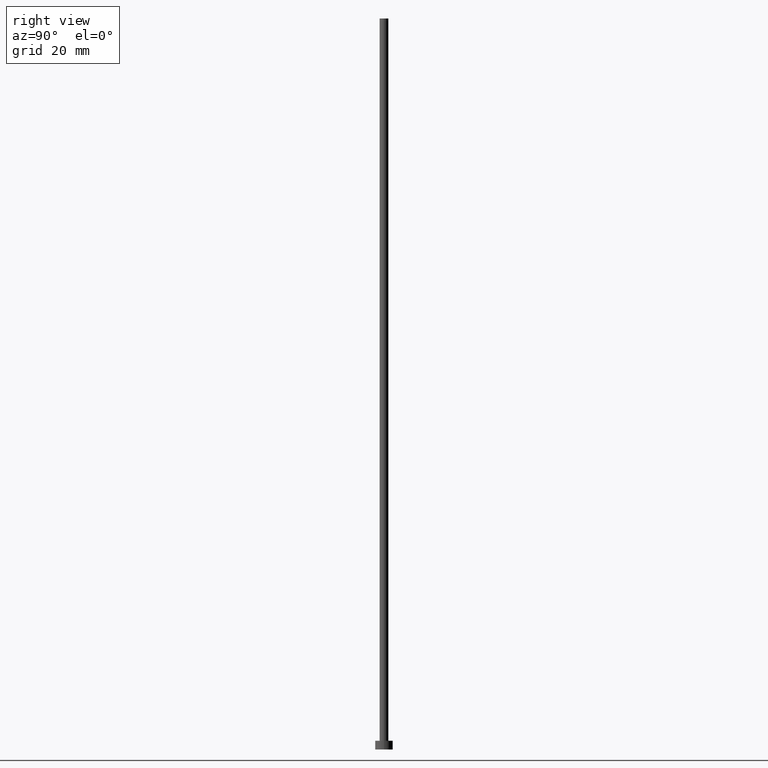
[diagram: clean part render]
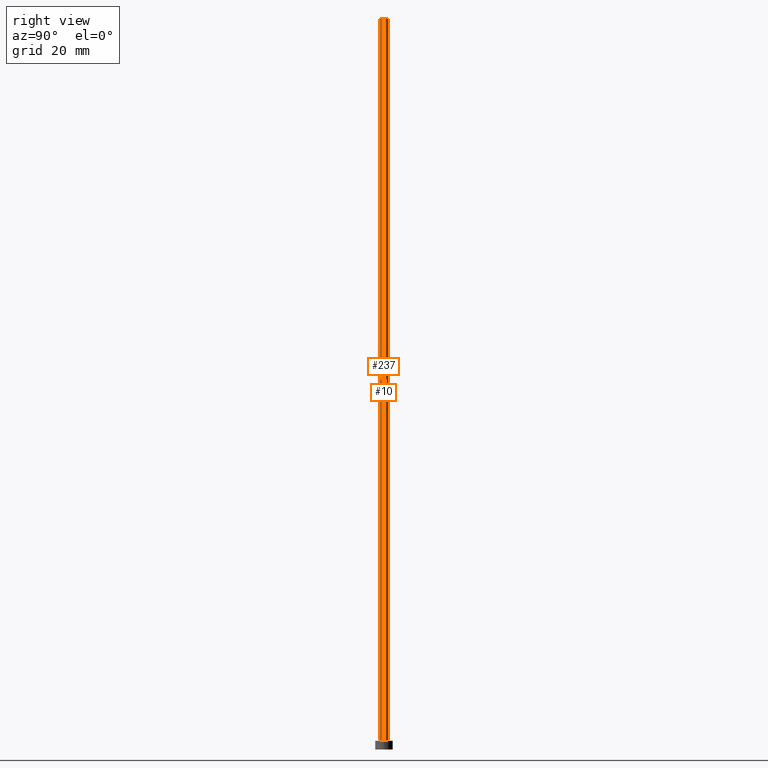
[diagram: same view with one multi-face feature highlighted, each face labeled with its STEP entity id]
A machine part, right view. The highlighted faces form ONE feature: a constant-radius fillet chain: 2 tangent blend faces with common blend radius 1.5 mm. The faces share edges in the B-rep.
Their STEP definitions:
[1] entity #237 (Cylinder):
#3 = CIRCLE ( 'NONE', #155, 1.500000000000000222 ) ;
#4 = LINE ( 'NONE', #238, #84 ) ;
#16 = CARTESIAN_POINT ( 'NONE',  ( 0.000000000000000000, 0.000000000000000000, 3.000000000000000000 ) ) ;
#29 = EDGE_CURVE ( 'NONE', #68, #179, #192, .T. ) ;
#41 = DIRECTION ( 'NONE',  ( -1.000000000000000000, 0.000000000000000000, 0.000000000000000000 ) ) ;
#52 = EDGE_CURVE ( 'NONE', #68, #53, #4, .T. ) ;
#53 = VERTEX_POINT ( 'NONE', #221 ) ;
#57 = DIRECTION ( 'NONE',  ( -0.000000000000000000, -0.000000000000000000, -1.000000000000000000 ) ) ;
#59 = VECTOR ( 'NONE', #57, 1000.000000000000000 ) ;
#66 = DIRECTION ( 'NONE',  ( -0.000000000000000000, -0.000000000000000000, -1.000000000000000000 ) ) ;
#68 = VERTEX_POINT ( 'NONE', #254 ) ;
#74 = LINE ( 'NONE', #158, #59 ) ;
#78 = EDGE_CURVE ( 'NONE', #53, #234, #3, .T. ) ;
#81 = ORIENTED_EDGE ( 'NONE', *, *, #29, .F. ) ;
#82 = CYLINDRICAL_SURFACE ( 'NONE', #133, 1.500000000000000222 ) ;
#84 = VECTOR ( 'NONE', #66, 1000.000000000000000 ) ;
#89 = ORIENTED_EDGE ( 'NONE', *, *, #137, .F. ) ;
#93 = AXIS2_PLACEMENT_3D ( 'NONE', #167, #182, #141 ) ;
#95 = CARTESIAN_POINT ( 'NONE',  ( 1.500000000000000222, 1.836970198721030181E-16, 250.0000000000000000 ) ) ;
#104 = FACE_OUTER_BOUND ( 'NONE', #146, .T. ) ;
#115 = DIRECTION ( 'NONE',  ( 1.000000000000000000, 0.000000000000000000, 0.000000000000000000 ) ) ;
#133 = AXIS2_PLACEMENT_3D ( 'NONE', #216, #213, #41 ) ;
#137 = EDGE_CURVE ( 'NONE', #179, #234, #74, .T. ) ;
#140 = CARTESIAN_POINT ( 'NONE',  ( 1.500000000000000222, 1.836970198721030181E-16, 3.000000000000000000 ) ) ;
#141 = DIRECTION ( 'NONE',  ( 1.000000000000000000, 0.000000000000000000, 0.000000000000000000 ) ) ;
#146 = EDGE_LOOP ( 'NONE', ( #89, #81, #208, #185 ) ) ;
#155 = AXIS2_PLACEMENT_3D ( 'NONE', #16, #249, #115 ) ;
#158 = CARTESIAN_POINT ( 'NONE',  ( 1.500000000000000222, 1.836970198721030181E-16, 250.0000000000000000 ) ) ;
#167 = CARTESIAN_POINT ( 'NONE',  ( 0.000000000000000000, 0.000000000000000000, 250.0000000000000000 ) ) ;
#179 = VERTEX_POINT ( 'NONE', #95 ) ;
#182 = DIRECTION ( 'NONE',  ( 0.000000000000000000, 0.000000000000000000, 1.000000000000000000 ) ) ;
#185 = ORIENTED_EDGE ( 'NONE', *, *, #78, .T. ) ;
#192 = CIRCLE ( 'NONE', #93, 1.500000000000000222 ) ;
#208 = ORIENTED_EDGE ( 'NONE', *, *, #52, .T. ) ;
#213 = DIRECTION ( 'NONE',  ( -0.000000000000000000, -0.000000000000000000, -1.000000000000000000 ) ) ;
#216 = CARTESIAN_POINT ( 'NONE',  ( 0.000000000000000000, 0.000000000000000000, 250.0000000000000000 ) ) ;
#221 = CARTESIAN_POINT ( 'NONE',  ( -1.500000000000000222, 0.000000000000000000, 3.000000000000000000 ) ) ;
#234 = VERTEX_POINT ( 'NONE', #140 ) ;
#237 = ADVANCED_FACE ( 'NONE', ( #104 ), #82, .T. ) ;
#238 = CARTESIAN_POINT ( 'NONE',  ( -1.500000000000000222, 0.000000000000000000, 250.0000000000000000 ) ) ;
#249 = DIRECTION ( 'NONE',  ( 0.000000000000000000, 0.000000000000000000, 1.000000000000000000 ) ) ;
#254 = CARTESIAN_POINT ( 'NONE',  ( -1.500000000000000222, 0.000000000000000000, 250.0000000000000000 ) ) ;
[2] entity #10 (Cylinder):
#4 = LINE ( 'NONE', #238, #84 ) ;
#10 = ADVANCED_FACE ( 'NONE', ( #42 ), #25, .T. ) ;
#14 = DIRECTION ( 'NONE',  ( 1.000000000000000000, 0.000000000000000000, 0.000000000000000000 ) ) ;
#19 = DIRECTION ( 'NONE',  ( 0.000000000000000000, 0.000000000000000000, 1.000000000000000000 ) ) ;
#21 = CIRCLE ( 'NONE', #211, 1.500000000000000222 ) ;
#25 = CYLINDRICAL_SURFACE ( 'NONE', #32, 1.500000000000000222 ) ;
#32 = AXIS2_PLACEMENT_3D ( 'NONE', #124, #203, #108 ) ;
#42 = FACE_OUTER_BOUND ( 'NONE', #70, .T. ) ;
#52 = EDGE_CURVE ( 'NONE', #68, #53, #4, .T. ) ;
#53 = VERTEX_POINT ( 'NONE', #221 ) ;
#54 = DIRECTION ( 'NONE',  ( 1.000000000000000000, 0.000000000000000000, 0.000000000000000000 ) ) ;
#57 = DIRECTION ( 'NONE',  ( -0.000000000000000000, -0.000000000000000000, -1.000000000000000000 ) ) ;
#59 = VECTOR ( 'NONE', #57, 1000.000000000000000 ) ;
#63 = ORIENTED_EDGE ( 'NONE', *, *, #137, .T. ) ;
#66 = DIRECTION ( 'NONE',  ( -0.000000000000000000, -0.000000000000000000, -1.000000000000000000 ) ) ;
#68 = VERTEX_POINT ( 'NONE', #254 ) ;
#70 = EDGE_LOOP ( 'NONE', ( #75, #63, #171, #128 ) ) ;
#74 = LINE ( 'NONE', #158, #59 ) ;
#75 = ORIENTED_EDGE ( 'NONE', *, *, #187, .F. ) ;
#84 = VECTOR ( 'NONE', #66, 1000.000000000000000 ) ;
#88 = EDGE_CURVE ( 'NONE', #234, #53, #150, .T. ) ;
#95 = CARTESIAN_POINT ( 'NONE',  ( 1.500000000000000222, 1.836970198721030181E-16, 250.0000000000000000 ) ) ;
#108 = DIRECTION ( 'NONE',  ( -1.000000000000000000, 0.000000000000000000, 0.000000000000000000 ) ) ;
#124 = CARTESIAN_POINT ( 'NONE',  ( 0.000000000000000000, 0.000000000000000000, 250.0000000000000000 ) ) ;
#128 = ORIENTED_EDGE ( 'NONE', *, *, #52, .F. ) ;
#137 = EDGE_CURVE ( 'NONE', #179, #234, #74, .T. ) ;
#140 = CARTESIAN_POINT ( 'NONE',  ( 1.500000000000000222, 1.836970198721030181E-16, 3.000000000000000000 ) ) ;
#150 = CIRCLE ( 'NONE', #199, 1.500000000000000222 ) ;
#158 = CARTESIAN_POINT ( 'NONE',  ( 1.500000000000000222, 1.836970198721030181E-16, 250.0000000000000000 ) ) ;
#171 = ORIENTED_EDGE ( 'NONE', *, *, #88, .T. ) ;
#179 = VERTEX_POINT ( 'NONE', #95 ) ;
#187 = EDGE_CURVE ( 'NONE', #179, #68, #21, .T. ) ;
#199 = AXIS2_PLACEMENT_3D ( 'NONE', #228, #19, #14 ) ;
#203 = DIRECTION ( 'NONE',  ( -0.000000000000000000, -0.000000000000000000, -1.000000000000000000 ) ) ;
#211 = AXIS2_PLACEMENT_3D ( 'NONE', #246, #227, #54 ) ;
#221 = CARTESIAN_POINT ( 'NONE',  ( -1.500000000000000222, 0.000000000000000000, 3.000000000000000000 ) ) ;
#227 = DIRECTION ( 'NONE',  ( 0.000000000000000000, 0.000000000000000000, 1.000000000000000000 ) ) ;
#228 = CARTESIAN_POINT ( 'NONE',  ( 0.000000000000000000, 0.000000000000000000, 3.000000000000000000 ) ) ;
#234 = VERTEX_POINT ( 'NONE', #140 ) ;
#238 = CARTESIAN_POINT ( 'NONE',  ( -1.500000000000000222, 0.000000000000000000, 250.0000000000000000 ) ) ;
#246 = CARTESIAN_POINT ( 'NONE',  ( 0.000000000000000000, 0.000000000000000000, 250.0000000000000000 ) ) ;
#254 = CARTESIAN_POINT ( 'NONE',  ( -1.500000000000000222, 0.000000000000000000, 250.0000000000000000 ) ) ;